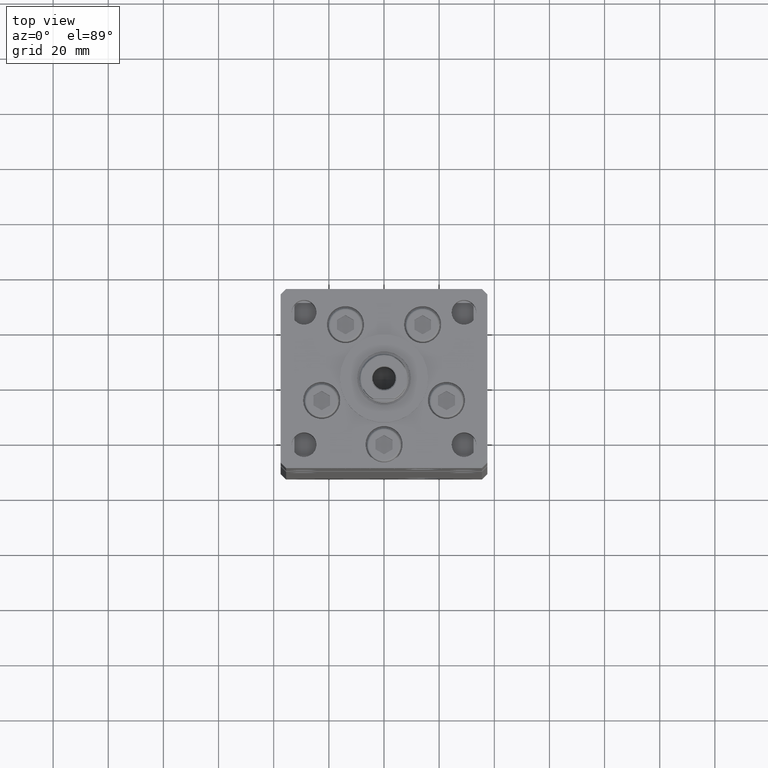
[diagram: clean part render]
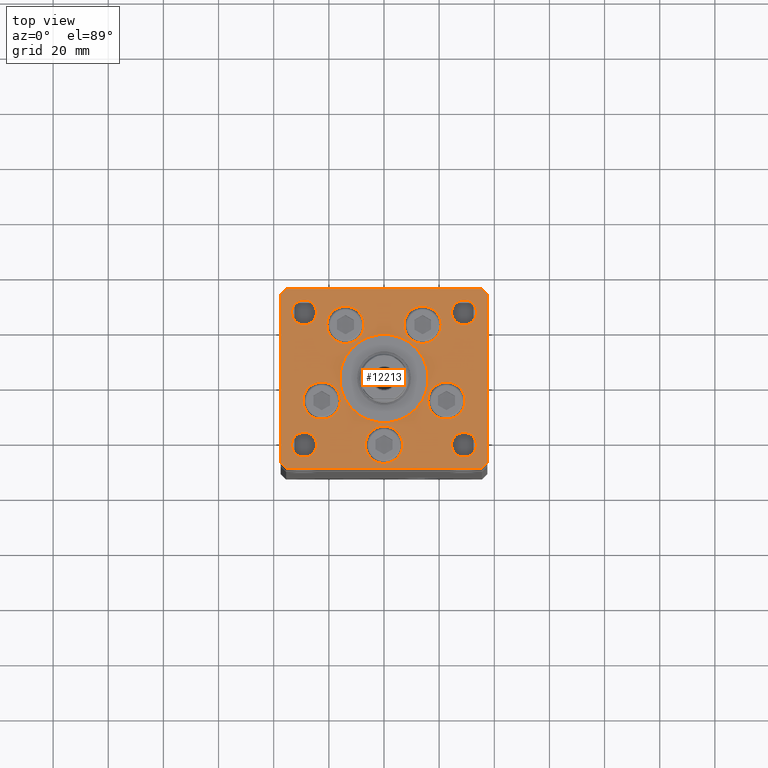
[diagram: same view with one face highlighted and labeled with its STEP entity id]
A machine part, top view. The second image highlights one B-rep face of the part: STEP entity #12213.
In plain terms, the highlighted planar face has unit normal (0, 0, 1).
Its self-contained STEP definition (entity closure, byte-faithful):
#327 = DIRECTION ( 'NONE',  ( 1.000000000000000000, 1.172770800660376149E-15, 0.000000000000000000 ) ) ;
#519 = EDGE_CURVE ( 'NONE', #5433, #52357, #36973, .T. ) ;
#522 = CARTESIAN_POINT ( 'NONE',  ( 29.00000000000000355, -23.99999999999999645, 0.000000000000000000 ) ) ;
#858 = CARTESIAN_POINT ( 'NONE',  ( -20.74106857963324302, 19.50000000000000000, 0.000000000000000000 ) ) ;
#1050 = DIRECTION ( 'NONE',  ( 0.000000000000000000, 0.000000000000000000, 1.000000000000000000 ) ) ;
#1358 = CARTESIAN_POINT ( 'NONE',  ( 0.000000000000000000, -6.938893903907228378E-15, 0.000000000000000000 ) ) ;
#1382 = EDGE_CURVE ( 'NONE', #13978, #6976, #46625, .T. ) ;
#2303 = VERTEX_POINT ( 'NONE', #6376 ) ;
#2463 = CARTESIAN_POINT ( 'NONE',  ( 22.62741699796953299, -8.000000000000000000, 0.000000000000000000 ) ) ;
#2520 = FACE_BOUND ( 'NONE', #19150, .T. ) ;
#2625 = DIRECTION ( 'NONE',  ( -1.000000000000000000, 0.000000000000000000, 0.000000000000000000 ) ) ;
#2740 = VERTEX_POINT ( 'NONE', #37130 ) ;
#2778 = LINE ( 'NONE', #27494, #25666 ) ;
#2781 = CARTESIAN_POINT ( 'NONE',  ( 0.000000000000000000, 0.000000000000000000, 0.000000000000000000 ) ) ;
#2830 = CARTESIAN_POINT ( 'NONE',  ( -29.37741699796953654, -8.000000000000000000, 0.000000000000000000 ) ) ;
#2928 = VERTEX_POINT ( 'NONE', #42228 ) ;
#2942 = DIRECTION ( 'NONE',  ( -0.7071067811865524577, -0.7071067811865426878, 0.000000000000000000 ) ) ;
#3080 = AXIS2_PLACEMENT_3D ( 'NONE', #522, #9668, #26032 ) ;
#3162 = CIRCLE ( 'NONE', #21209, 6.749999999999999112 ) ;
#3185 = ORIENTED_EDGE ( 'NONE', *, *, #32193, .T. ) ;
#3589 = CIRCLE ( 'NONE', #8752, 6.749999999999997335 ) ;
#3614 = CARTESIAN_POINT ( 'NONE',  ( 29.00000000000000000, 24.00000000000000355, 0.000000000000000000 ) ) ;
#3738 = DIRECTION ( 'NONE',  ( 0.000000000000000000, 0.000000000000000000, 1.000000000000000000 ) ) ;
#3964 = VECTOR ( 'NONE', #48406, 1000.000000000000000 ) ;
#4185 = VERTEX_POINT ( 'NONE', #25828 ) ;
#4332 = CARTESIAN_POINT ( 'NONE',  ( -33.50000000000000000, -23.99999999999999645, 0.000000000000000000 ) ) ;
#4333 = EDGE_CURVE ( 'NONE', #36111, #5111, #3589, .T. ) ;
#4709 = DIRECTION ( 'NONE',  ( 0.000000000000000000, 0.000000000000000000, 1.000000000000000000 ) ) ;
#5010 = DIRECTION ( 'NONE',  ( 1.000000000000000000, 0.000000000000000000, 0.000000000000000000 ) ) ;
#5044 = CARTESIAN_POINT ( 'NONE',  ( -24.50000000000000000, 24.00000000000000711, 0.000000000000000000 ) ) ;
#5061 = VERTEX_POINT ( 'NONE', #858 ) ;
#5111 = VERTEX_POINT ( 'NONE', #9739 ) ;
#5433 = VERTEX_POINT ( 'NONE', #38664 ) ;
#5869 = DIRECTION ( 'NONE',  ( 0.000000000000000000, 0.000000000000000000, 1.000000000000000000 ) ) ;
#5986 = ORIENTED_EDGE ( 'NONE', *, *, #27667, .F. ) ;
#5999 = AXIS2_PLACEMENT_3D ( 'NONE', #15375, #48176, #39825 ) ;
#6118 = EDGE_CURVE ( 'NONE', #2740, #29234, #15943, .T. ) ;
#6190 = CARTESIAN_POINT ( 'NONE',  ( 29.37741699796954364, -8.000000000000000000, 0.000000000000000000 ) ) ;
#6252 = AXIS2_PLACEMENT_3D ( 'NONE', #40660, #43812, #39772 ) ;
#6336 = AXIS2_PLACEMENT_3D ( 'NONE', #30678, #10277, #26642 ) ;
#6376 = CARTESIAN_POINT ( 'NONE',  ( 37.50000000000000711, -30.49999999999992895, 0.000000000000000000 ) ) ;
#6483 = DIRECTION ( 'NONE',  ( 1.000000000000000000, 0.000000000000000000, 0.000000000000000000 ) ) ;
#6519 = EDGE_LOOP ( 'NONE', ( #5986, #32874 ) ) ;
#6640 = CIRCLE ( 'NONE', #10950, 4.500000000000000888 ) ;
#6678 = CARTESIAN_POINT ( 'NONE',  ( 29.00000000000000355, -23.99999999999999645, 0.000000000000000000 ) ) ;
#6717 = EDGE_LOOP ( 'NONE', ( #25389, #47274 ) ) ;
#6797 = DIRECTION ( 'NONE',  ( -0.000000000000000000, -0.000000000000000000, -1.000000000000000000 ) ) ;
#6976 = VERTEX_POINT ( 'NONE', #30201 ) ;
#7093 = FACE_BOUND ( 'NONE', #46986, .T. ) ;
#7258 = CARTESIAN_POINT ( 'NONE',  ( -35.50000000000000711, 32.49999999999997868, 0.000000000000000000 ) ) ;
#7283 = CARTESIAN_POINT ( 'NONE',  ( 0.000000000000000000, -24.00000000000001066, 0.000000000000000000 ) ) ;
#7361 = CARTESIAN_POINT ( 'NONE',  ( -16.00000000000000355, -6.938893903907228378E-15, 0.000000000000000000 ) ) ;
#7775 = CIRCLE ( 'NONE', #19781, 16.00000000000000355 ) ;
#7942 = DIRECTION ( 'NONE',  ( -1.000000000000000000, 0.000000000000000000, 0.000000000000000000 ) ) ;
#7947 = DIRECTION ( 'NONE',  ( 0.000000000000000000, 0.000000000000000000, 1.000000000000000000 ) ) ;
#8212 = CARTESIAN_POINT ( 'NONE',  ( -22.62741699796953299, -8.000000000000000000, 0.000000000000000000 ) ) ;
#8217 = CIRCLE ( 'NONE', #30473, 6.750000000000009770 ) ;
#8409 = EDGE_LOOP ( 'NONE', ( #10955, #41806 ) ) ;
#8512 = CARTESIAN_POINT ( 'NONE',  ( -6.750000000001552536, -24.00000000000001066, 0.000000000000000000 ) ) ;
#8585 = CIRCLE ( 'NONE', #5999, 4.500000000000000888 ) ;
#8688 = AXIS2_PLACEMENT_3D ( 'NONE', #33463, #4709, #46370 ) ;
#8752 = AXIS2_PLACEMENT_3D ( 'NONE', #12042, #36221, #49128 ) ;
#9173 = VERTEX_POINT ( 'NONE', #2830 ) ;
#9394 = EDGE_CURVE ( 'NONE', #14107, #16961, #44811, .T. ) ;
#9668 = DIRECTION ( 'NONE',  ( -0.000000000000000000, -0.000000000000000000, -1.000000000000000000 ) ) ;
#9712 = DIRECTION ( 'NONE',  ( 0.7071067811865512365, -0.7071067811865439090, 0.000000000000000000 ) ) ;
#9739 = CARTESIAN_POINT ( 'NONE',  ( 7.241068579633242130, 19.50000000000000000, 0.000000000000000000 ) ) ;
#9803 = CARTESIAN_POINT ( 'NONE',  ( 37.50000000000000711, 30.50000000000001421, 0.000000000000000000 ) ) ;
#9850 = CARTESIAN_POINT ( 'NONE',  ( -13.99106857963324124, 19.50000000000000000, 0.000000000000000000 ) ) ;
#10113 = EDGE_CURVE ( 'NONE', #2303, #13978, #21621, .T. ) ;
#10277 = DIRECTION ( 'NONE',  ( 0.000000000000000000, 0.000000000000000000, 1.000000000000000000 ) ) ;
#10334 = ORIENTED_EDGE ( 'NONE', *, *, #10113, .T. ) ;
#10361 = ORIENTED_EDGE ( 'NONE', *, *, #30239, .T. ) ;
#10439 = EDGE_CURVE ( 'NONE', #4185, #33017, #37126, .T. ) ;
#10791 = AXIS2_PLACEMENT_3D ( 'NONE', #34970, #39792, #35755 ) ;
#10882 = FACE_BOUND ( 'NONE', #14531, .T. ) ;
#10950 = AXIS2_PLACEMENT_3D ( 'NONE', #43875, #6797, #51964 ) ;
#10955 = ORIENTED_EDGE ( 'NONE', *, *, #18739, .T. ) ;
#11394 = DIRECTION ( 'NONE',  ( -0.000000000000000000, 0.000000000000000000, 1.000000000000000000 ) ) ;
#11707 = CARTESIAN_POINT ( 'NONE',  ( -29.00000000000000000, 24.00000000000000711, 0.000000000000000000 ) ) ;
#11793 = ORIENTED_EDGE ( 'NONE', *, *, #9394, .F. ) ;
#11834 = CARTESIAN_POINT ( 'NONE',  ( -37.50000000000001421, 30.50000000000000000, 0.000000000000000000 ) ) ;
#11912 = CARTESIAN_POINT ( 'NONE',  ( -13.99106857963324124, 19.50000000000000000, 0.000000000000000000 ) ) ;
#12042 = CARTESIAN_POINT ( 'NONE',  ( 13.99106857963324124, 19.50000000000000000, 0.000000000000000000 ) ) ;
#12141 = VERTEX_POINT ( 'NONE', #7361 ) ;
#12192 = CARTESIAN_POINT ( 'NONE',  ( 33.50000000000000000, -23.99999999999999645, 0.000000000000000000 ) ) ;
#12213 = ADVANCED_FACE ( 'NONE', ( #40135, #43908, #7093, #2520, #18929, #19455, #15424, #48223, #10882, #27236, #23217 ), #39609, .T. ) ;
#12454 = EDGE_CURVE ( 'NONE', #36709, #9173, #29482, .T. ) ;
#12559 = EDGE_LOOP ( 'NONE', ( #37673, #39275, #17109, #10334, #20063, #10361, #49192, #49876 ) ) ;
#13575 = VERTEX_POINT ( 'NONE', #44003 ) ;
#13644 = VERTEX_POINT ( 'NONE', #8512 ) ;
#13978 = VERTEX_POINT ( 'NONE', #34410 ) ;
#14107 = VERTEX_POINT ( 'NONE', #14534 ) ;
#14387 = CARTESIAN_POINT ( 'NONE',  ( 33.50000000000000000, 24.00000000000000355, 0.000000000000000000 ) ) ;
#14531 = EDGE_LOOP ( 'NONE', ( #48887, #14945 ) ) ;
#14534 = CARTESIAN_POINT ( 'NONE',  ( 24.50000000000000000, 24.00000000000000355, 0.000000000000000000 ) ) ;
#14719 = VERTEX_POINT ( 'NONE', #36664 ) ;
#14808 = DIRECTION ( 'NONE',  ( 1.000000000000000000, 0.000000000000000000, 0.000000000000000000 ) ) ;
#14856 = VERTEX_POINT ( 'NONE', #39319 ) ;
#14945 = ORIENTED_EDGE ( 'NONE', *, *, #40144, .F. ) ;
#15375 = CARTESIAN_POINT ( 'NONE',  ( -29.00000000000000000, -23.99999999999999645, 0.000000000000000000 ) ) ;
#15424 = FACE_BOUND ( 'NONE', #16308, .T. ) ;
#15943 = LINE ( 'NONE', #32324, #48328 ) ;
#16124 = LINE ( 'NONE', #45141, #30586 ) ;
#16175 = VECTOR ( 'NONE', #2942, 1000.000000000000000 ) ;
#16308 = EDGE_LOOP ( 'NONE', ( #3185, #19408 ) ) ;
#16472 = DIRECTION ( 'NONE',  ( 1.000000000000000000, 0.000000000000000000, 0.000000000000000000 ) ) ;
#16477 = VERTEX_POINT ( 'NONE', #12192 ) ;
#16570 = ORIENTED_EDGE ( 'NONE', *, *, #4333, .F. ) ;
#16961 = VERTEX_POINT ( 'NONE', #14387 ) ;
#17109 = ORIENTED_EDGE ( 'NONE', *, *, #37541, .T. ) ;
#17757 = AXIS2_PLACEMENT_3D ( 'NONE', #9850, #41834, #5010 ) ;
#18341 = EDGE_CURVE ( 'NONE', #20872, #2928, #8217, .T. ) ;
#18355 = ORIENTED_EDGE ( 'NONE', *, *, #36065, .F. ) ;
#18575 = CARTESIAN_POINT ( 'NONE',  ( -37.50000000000000000, -30.50000000000004263, 0.000000000000000000 ) ) ;
#18739 = EDGE_CURVE ( 'NONE', #16477, #48897, #44274, .T. ) ;
#18771 = VERTEX_POINT ( 'NONE', #47650 ) ;
#18801 = EDGE_CURVE ( 'NONE', #2928, #20872, #45997, .T. ) ;
#18929 = FACE_BOUND ( 'NONE', #6519, .T. ) ;
#19150 = EDGE_LOOP ( 'NONE', ( #26812, #53065 ) ) ;
#19408 = ORIENTED_EDGE ( 'NONE', *, *, #519, .T. ) ;
#19455 = FACE_BOUND ( 'NONE', #28554, .T. ) ;
#19781 = AXIS2_PLACEMENT_3D ( 'NONE', #52627, #40236, #20351 ) ;
#20031 = DIRECTION ( 'NONE',  ( 0.000000000000000000, 0.000000000000000000, 1.000000000000000000 ) ) ;
#20063 = ORIENTED_EDGE ( 'NONE', *, *, #1382, .T. ) ;
#20351 = DIRECTION ( 'NONE',  ( 1.000000000000000000, 0.000000000000000000, 0.000000000000000000 ) ) ;
#20789 = EDGE_LOOP ( 'NONE', ( #41472, #18355 ) ) ;
#20872 = VERTEX_POINT ( 'NONE', #6190 ) ;
#21209 = AXIS2_PLACEMENT_3D ( 'NONE', #8212, #7947, #45024 ) ;
#21621 = LINE ( 'NONE', #38261, #48325 ) ;
#22213 = CARTESIAN_POINT ( 'NONE',  ( 16.00000000000000355, -4.979459025271462852E-15, 0.000000000000000000 ) ) ;
#22385 = EDGE_CURVE ( 'NONE', #16961, #14107, #48654, .T. ) ;
#22416 = CIRCLE ( 'NONE', #8688, 6.749999999999997335 ) ;
#22627 = EDGE_CURVE ( 'NONE', #25145, #5061, #32328, .T. ) ;
#22638 = ORIENTED_EDGE ( 'NONE', *, *, #48677, .F. ) ;
#23217 = FACE_BOUND ( 'NONE', #8409, .T. ) ;
#23377 = LINE ( 'NONE', #7258, #16175 ) ;
#24444 = EDGE_CURVE ( 'NONE', #13644, #18771, #45184, .T. ) ;
#24530 = EDGE_CURVE ( 'NONE', #14856, #14719, #33042, .T. ) ;
#24782 = CARTESIAN_POINT ( 'NONE',  ( -7.241068579633241242, 19.50000000000000000, 0.000000000000000000 ) ) ;
#25145 = VERTEX_POINT ( 'NONE', #24782 ) ;
#25389 = ORIENTED_EDGE ( 'NONE', *, *, #22627, .F. ) ;
#25666 = VECTOR ( 'NONE', #47701, 1000.000000000000000 ) ;
#25749 = CARTESIAN_POINT ( 'NONE',  ( 29.00000000000000000, 24.00000000000000355, 0.000000000000000000 ) ) ;
#25828 = CARTESIAN_POINT ( 'NONE',  ( -24.50000000000000000, -23.99999999999999645, 0.000000000000000000 ) ) ;
#26032 = DIRECTION ( 'NONE',  ( -1.000000000000000000, 0.000000000000000000, 0.000000000000000000 ) ) ;
#26127 = ORIENTED_EDGE ( 'NONE', *, *, #31561, .F. ) ;
#26168 = DIRECTION ( 'NONE',  ( -0.7071067811865524577, 0.7071067811865426878, 0.000000000000000000 ) ) ;
#26642 = DIRECTION ( 'NONE',  ( 1.000000000000000000, 0.000000000000000000, 0.000000000000000000 ) ) ;
#26812 = ORIENTED_EDGE ( 'NONE', *, *, #18341, .F. ) ;
#27236 = FACE_OUTER_BOUND ( 'NONE', #12559, .T. ) ;
#27494 = CARTESIAN_POINT ( 'NONE',  ( 35.50000000000001421, -32.49999999999992184, 0.000000000000000000 ) ) ;
#27667 = EDGE_CURVE ( 'NONE', #18771, #13644, #33929, .T. ) ;
#27922 = CARTESIAN_POINT ( 'NONE',  ( 22.62741699796953299, -8.000000000000000000, 0.000000000000000000 ) ) ;
#28554 = EDGE_LOOP ( 'NONE', ( #46511, #26127 ) ) ;
#28692 = EDGE_CURVE ( 'NONE', #48897, #16477, #38257, .T. ) ;
#29234 = VERTEX_POINT ( 'NONE', #33365 ) ;
#29482 = CIRCLE ( 'NONE', #6336, 6.749999999999999112 ) ;
#29662 = DIRECTION ( 'NONE',  ( 0.000000000000000000, 1.000000000000000000, 0.000000000000000000 ) ) ;
#30201 = CARTESIAN_POINT ( 'NONE',  ( 35.50000000000000000, 32.49999999999999289, 0.000000000000000000 ) ) ;
#30239 = EDGE_CURVE ( 'NONE', #6976, #13575, #16124, .T. ) ;
#30473 = AXIS2_PLACEMENT_3D ( 'NONE', #27922, #3738, #51907 ) ;
#30552 = AXIS2_PLACEMENT_3D ( 'NONE', #7283, #51124, #6483 ) ;
#30586 = VECTOR ( 'NONE', #49443, 1000.000000000000000 ) ;
#30678 = CARTESIAN_POINT ( 'NONE',  ( -22.62741699796953299, -8.000000000000000000, 0.000000000000000000 ) ) ;
#31412 = AXIS2_PLACEMENT_3D ( 'NONE', #6678, #48073, #2625 ) ;
#31561 = EDGE_CURVE ( 'NONE', #9173, #36709, #3162, .T. ) ;
#32193 = EDGE_CURVE ( 'NONE', #52357, #5433, #6640, .T. ) ;
#32324 = CARTESIAN_POINT ( 'NONE',  ( -35.50000000000001421, -32.50000000000000711, 0.000000000000000000 ) ) ;
#32328 = CIRCLE ( 'NONE', #17757, 6.750000000000000000 ) ;
#32874 = ORIENTED_EDGE ( 'NONE', *, *, #24444, .F. ) ;
#33017 = VERTEX_POINT ( 'NONE', #4332 ) ;
#33042 = LINE ( 'NONE', #11834, #3964 ) ;
#33365 = CARTESIAN_POINT ( 'NONE',  ( 35.50000000000001421, -32.49999999999992184, 0.000000000000000000 ) ) ;
#33463 = CARTESIAN_POINT ( 'NONE',  ( 13.99106857963324124, 19.50000000000000000, 0.000000000000000000 ) ) ;
#33566 = VECTOR ( 'NONE', #26168, 1000.000000000000000 ) ;
#33929 = CIRCLE ( 'NONE', #10791, 6.750000000001552536 ) ;
#34410 = CARTESIAN_POINT ( 'NONE',  ( 37.50000000000000711, 30.50000000000001421, 0.000000000000000000 ) ) ;
#34970 = CARTESIAN_POINT ( 'NONE',  ( 0.000000000000000000, -24.00000000000001066, 0.000000000000000000 ) ) ;
#35084 = EDGE_CURVE ( 'NONE', #13575, #14856, #23377, .T. ) ;
#35221 = DIRECTION ( 'NONE',  ( 0.000000000000000000, 0.000000000000000000, 1.000000000000000000 ) ) ;
#35755 = DIRECTION ( 'NONE',  ( 1.000000000000000000, 0.000000000000000000, 0.000000000000000000 ) ) ;
#35927 = CIRCLE ( 'NONE', #36802, 16.00000000000000355 ) ;
#35963 = EDGE_CURVE ( 'NONE', #14719, #2740, #50834, .T. ) ;
#35966 = AXIS2_PLACEMENT_3D ( 'NONE', #11912, #1050, #40392 ) ;
#36065 = EDGE_CURVE ( 'NONE', #37366, #12141, #35927, .T. ) ;
#36111 = VERTEX_POINT ( 'NONE', #40570 ) ;
#36221 = DIRECTION ( 'NONE',  ( 0.000000000000000000, 0.000000000000000000, 1.000000000000000000 ) ) ;
#36409 = DIRECTION ( 'NONE',  ( 1.000000000000000000, 0.000000000000000000, 0.000000000000000000 ) ) ;
#36415 = DIRECTION ( 'NONE',  ( -0.000000000000000000, -0.000000000000000000, -1.000000000000000000 ) ) ;
#36622 = AXIS2_PLACEMENT_3D ( 'NONE', #25749, #5869, #38113 ) ;
#36664 = CARTESIAN_POINT ( 'NONE',  ( -37.50000000000000000, -30.50000000000004263, 0.000000000000000000 ) ) ;
#36709 = VERTEX_POINT ( 'NONE', #41440 ) ;
#36802 = AXIS2_PLACEMENT_3D ( 'NONE', #1358, #35221, #14808 ) ;
#36973 = CIRCLE ( 'NONE', #47331, 4.500000000000000888 ) ;
#37126 = CIRCLE ( 'NONE', #6252, 4.500000000000000888 ) ;
#37130 = CARTESIAN_POINT ( 'NONE',  ( -35.50000000000001421, -32.50000000000000711, 0.000000000000000000 ) ) ;
#37366 = VERTEX_POINT ( 'NONE', #22213 ) ;
#37541 = EDGE_CURVE ( 'NONE', #29234, #2303, #2778, .T. ) ;
#37673 = ORIENTED_EDGE ( 'NONE', *, *, #35963, .T. ) ;
#37713 = EDGE_CURVE ( 'NONE', #5061, #25145, #52297, .T. ) ;
#37958 = AXIS2_PLACEMENT_3D ( 'NONE', #3614, #20031, #36409 ) ;
#38113 = DIRECTION ( 'NONE',  ( 1.000000000000000000, 0.000000000000000000, 0.000000000000000000 ) ) ;
#38257 = CIRCLE ( 'NONE', #3080, 4.499999999999997335 ) ;
#38261 = CARTESIAN_POINT ( 'NONE',  ( 37.50000000000000711, -30.49999999999992895, 0.000000000000000000 ) ) ;
#38664 = CARTESIAN_POINT ( 'NONE',  ( -33.50000000000000000, 24.00000000000000711, 0.000000000000000000 ) ) ;
#39275 = ORIENTED_EDGE ( 'NONE', *, *, #6118, .T. ) ;
#39319 = CARTESIAN_POINT ( 'NONE',  ( -37.50000000000001421, 30.50000000000000000, 0.000000000000000000 ) ) ;
#39432 = EDGE_LOOP ( 'NONE', ( #45278, #11793 ) ) ;
#39609 = PLANE ( 'NONE',  #50926 ) ;
#39772 = DIRECTION ( 'NONE',  ( 1.000000000000000000, 0.000000000000000000, 0.000000000000000000 ) ) ;
#39792 = DIRECTION ( 'NONE',  ( 0.000000000000000000, 0.000000000000000000, 1.000000000000000000 ) ) ;
#39825 = DIRECTION ( 'NONE',  ( 1.000000000000000000, 0.000000000000000000, 0.000000000000000000 ) ) ;
#40135 = FACE_BOUND ( 'NONE', #20789, .T. ) ;
#40144 = EDGE_CURVE ( 'NONE', #33017, #4185, #8585, .T. ) ;
#40236 = DIRECTION ( 'NONE',  ( 0.000000000000000000, 0.000000000000000000, 1.000000000000000000 ) ) ;
#40392 = DIRECTION ( 'NONE',  ( 1.000000000000000000, 0.000000000000000000, 0.000000000000000000 ) ) ;
#40570 = CARTESIAN_POINT ( 'NONE',  ( 20.74106857963323947, 19.50000000000000000, 0.000000000000000000 ) ) ;
#40660 = CARTESIAN_POINT ( 'NONE',  ( -29.00000000000000000, -23.99999999999999645, 0.000000000000000000 ) ) ;
#40853 = AXIS2_PLACEMENT_3D ( 'NONE', #2463, #43326, #51412 ) ;
#41440 = CARTESIAN_POINT ( 'NONE',  ( -15.87741699796953476, -8.000000000000000000, 0.000000000000000000 ) ) ;
#41472 = ORIENTED_EDGE ( 'NONE', *, *, #41518, .F. ) ;
#41518 = EDGE_CURVE ( 'NONE', #12141, #37366, #7775, .T. ) ;
#41806 = ORIENTED_EDGE ( 'NONE', *, *, #28692, .T. ) ;
#41834 = DIRECTION ( 'NONE',  ( 0.000000000000000000, 0.000000000000000000, 1.000000000000000000 ) ) ;
#42228 = CARTESIAN_POINT ( 'NONE',  ( 15.87741699796952410, -8.000000000000000000, 0.000000000000000000 ) ) ;
#43326 = DIRECTION ( 'NONE',  ( 0.000000000000000000, 0.000000000000000000, 1.000000000000000000 ) ) ;
#43812 = DIRECTION ( 'NONE',  ( 0.000000000000000000, 0.000000000000000000, 1.000000000000000000 ) ) ;
#43875 = CARTESIAN_POINT ( 'NONE',  ( -29.00000000000000000, 24.00000000000000711, 0.000000000000000000 ) ) ;
#43908 = FACE_BOUND ( 'NONE', #6717, .T. ) ;
#44003 = CARTESIAN_POINT ( 'NONE',  ( -35.50000000000000711, 32.49999999999997868, 0.000000000000000000 ) ) ;
#44274 = CIRCLE ( 'NONE', #31412, 4.499999999999997335 ) ;
#44811 = CIRCLE ( 'NONE', #37958, 4.500000000000000888 ) ;
#44916 = CARTESIAN_POINT ( 'NONE',  ( 24.50000000000000711, -23.99999999999999645, 0.000000000000000000 ) ) ;
#45024 = DIRECTION ( 'NONE',  ( 1.000000000000000000, 0.000000000000000000, 0.000000000000000000 ) ) ;
#45141 = CARTESIAN_POINT ( 'NONE',  ( 35.50000000000000000, 32.49999999999999289, 0.000000000000000000 ) ) ;
#45184 = CIRCLE ( 'NONE', #30552, 6.750000000001552536 ) ;
#45278 = ORIENTED_EDGE ( 'NONE', *, *, #22385, .F. ) ;
#45997 = CIRCLE ( 'NONE', #40853, 6.750000000000009770 ) ;
#46370 = DIRECTION ( 'NONE',  ( 1.000000000000000000, 0.000000000000000000, 0.000000000000000000 ) ) ;
#46511 = ORIENTED_EDGE ( 'NONE', *, *, #12454, .F. ) ;
#46625 = LINE ( 'NONE', #9803, #33566 ) ;
#46986 = EDGE_LOOP ( 'NONE', ( #16570, #22638 ) ) ;
#47274 = ORIENTED_EDGE ( 'NONE', *, *, #37713, .F. ) ;
#47331 = AXIS2_PLACEMENT_3D ( 'NONE', #11707, #36415, #7942 ) ;
#47650 = CARTESIAN_POINT ( 'NONE',  ( 6.750000000001552536, -24.00000000000001066, 0.000000000000000000 ) ) ;
#47701 = DIRECTION ( 'NONE',  ( 0.7071067811865463515, 0.7071067811865487940, 0.000000000000000000 ) ) ;
#47966 = VECTOR ( 'NONE', #9712, 1000.000000000000000 ) ;
#48073 = DIRECTION ( 'NONE',  ( -0.000000000000000000, -0.000000000000000000, -1.000000000000000000 ) ) ;
#48176 = DIRECTION ( 'NONE',  ( 0.000000000000000000, 0.000000000000000000, 1.000000000000000000 ) ) ;
#48223 = FACE_BOUND ( 'NONE', #39432, .T. ) ;
#48325 = VECTOR ( 'NONE', #29662, 1000.000000000000000 ) ;
#48328 = VECTOR ( 'NONE', #327, 1000.000000000000000 ) ;
#48406 = DIRECTION ( 'NONE',  ( 2.275047181608926165E-16, -1.000000000000000000, 0.000000000000000000 ) ) ;
#48654 = CIRCLE ( 'NONE', #36622, 4.500000000000000888 ) ;
#48677 = EDGE_CURVE ( 'NONE', #5111, #36111, #22416, .T. ) ;
#48887 = ORIENTED_EDGE ( 'NONE', *, *, #10439, .F. ) ;
#48897 = VERTEX_POINT ( 'NONE', #44916 ) ;
#49128 = DIRECTION ( 'NONE',  ( 1.000000000000000000, 0.000000000000000000, 0.000000000000000000 ) ) ;
#49192 = ORIENTED_EDGE ( 'NONE', *, *, #35084, .T. ) ;
#49443 = DIRECTION ( 'NONE',  ( -1.000000000000000000, -1.954618001100627573E-16, 0.000000000000000000 ) ) ;
#49876 = ORIENTED_EDGE ( 'NONE', *, *, #24530, .T. ) ;
#50834 = LINE ( 'NONE', #18575, #47966 ) ;
#50926 = AXIS2_PLACEMENT_3D ( 'NONE', #2781, #11394, #16472 ) ;
#51124 = DIRECTION ( 'NONE',  ( 0.000000000000000000, 0.000000000000000000, 1.000000000000000000 ) ) ;
#51412 = DIRECTION ( 'NONE',  ( 1.000000000000000000, 0.000000000000000000, 0.000000000000000000 ) ) ;
#51907 = DIRECTION ( 'NONE',  ( 1.000000000000000000, 0.000000000000000000, 0.000000000000000000 ) ) ;
#51964 = DIRECTION ( 'NONE',  ( -1.000000000000000000, 0.000000000000000000, 0.000000000000000000 ) ) ;
#52297 = CIRCLE ( 'NONE', #35966, 6.750000000000000000 ) ;
#52357 = VERTEX_POINT ( 'NONE', #5044 ) ;
#52627 = CARTESIAN_POINT ( 'NONE',  ( 0.000000000000000000, -6.938893903907228378E-15, 0.000000000000000000 ) ) ;
#53065 = ORIENTED_EDGE ( 'NONE', *, *, #18801, .F. ) ;